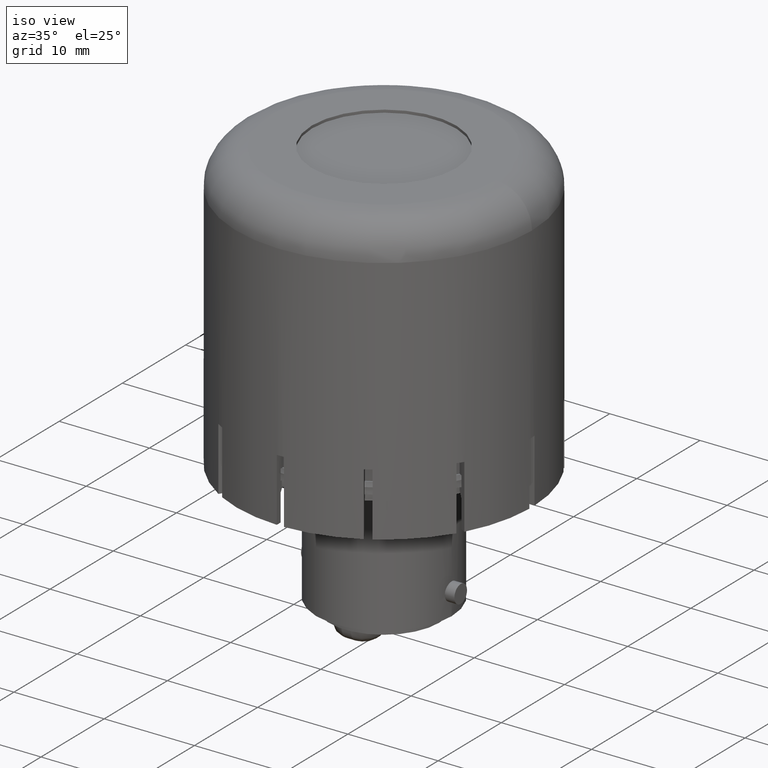
[diagram: clean part render]
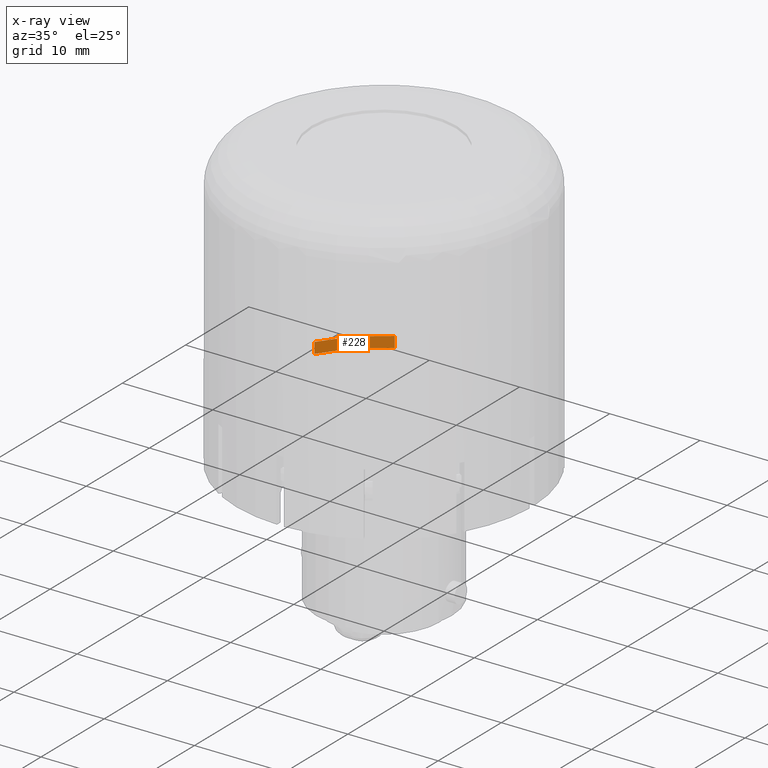
[diagram: x-ray — body ghosted, one internal face saturated and labeled with its STEP entity id]
A machine part, iso view, then the same camera in x-ray: the body is ghosted and one INTERNAL B-rep face — a face not visible from any outside direction — is saturated and labeled: STEP entity #228.
In plain terms, the highlighted cylindrical surface (partial cylindrical patch) has radius 15.8 mm, axis along (0, 0, -1).
Its self-contained STEP definition (entity closure, byte-faithful):
#228=ADVANCED_FACE('',(#466),#402,.F.);
#402=CYLINDRICAL_SURFACE('',#3761,15.8);
#466=FACE_OUTER_BOUND('',#641,.T.);
#641=EDGE_LOOP('',(#1188,#1189,#1190,#1191));
#843=CIRCLE('',#3697,15.8);
#892=CIRCLE('',#3759,15.8);
#1188=ORIENTED_EDGE('',*,*,#2625,.F.);
#1189=ORIENTED_EDGE('',*,*,#2624,.F.);
#1190=ORIENTED_EDGE('',*,*,#2626,.T.);
#1191=ORIENTED_EDGE('',*,*,#2526,.T.);
#2175=VERTEX_POINT('',#5295);
#2176=VERTEX_POINT('',#5297);
#2271=VERTEX_POINT('',#5500);
#2273=VERTEX_POINT('',#5504);
#2526=EDGE_CURVE('',#2176,#2175,#843,.T.);
#2624=EDGE_CURVE('',#2273,#2271,#892,.T.);
#2625=EDGE_CURVE('',#2271,#2175,#3093,.T.);
#2626=EDGE_CURVE('',#2273,#2176,#3094,.T.);
#3093=LINE('',#5507,#3413);
#3094=LINE('',#5508,#3414);
#3413=VECTOR('',#4338,1.);
#3414=VECTOR('',#4339,1.);
#3697=AXIS2_PLACEMENT_3D('',#5296,#4161,#4162);
#3759=AXIS2_PLACEMENT_3D('',#5505,#4334,#4335);
#3761=AXIS2_PLACEMENT_3D('',#5509,#4340,#4341);
#4161=DIRECTION('',(0.,0.,-1.));
#4162=DIRECTION('',(1.,0.,0.));
#4334=DIRECTION('',(0.,0.,-1.));
#4335=DIRECTION('',(1.,0.,0.));
#4338=DIRECTION('',(0.,0.,-1.));
#4339=DIRECTION('',(0.,0.,-1.));
#4340=DIRECTION('',(0.,0.,-1.));
#4341=DIRECTION('',(-1.,0.,0.));
#5295=CARTESIAN_POINT('',(-8.2438781101667,13.4788157382136,18.5));
#5296=CARTESIAN_POINT('',(9.86076131526265E-032,0.,18.5));
#5297=CARTESIAN_POINT('',(-13.4788157382136,8.24387811016667,18.5));
#5500=CARTESIAN_POINT('',(-8.2438781101667,13.4788157382136,19.7));
#5504=CARTESIAN_POINT('',(-13.4788157382136,8.24387811016667,19.7));
#5505=CARTESIAN_POINT('',(9.86076131526265E-032,0.,19.7));
#5507=CARTESIAN_POINT('',(-8.2438781101667,13.4788157382136,46.));
#5508=CARTESIAN_POINT('',(-13.4788157382136,8.24387811016667,46.));
#5509=CARTESIAN_POINT('',(9.86076131526265E-032,0.,46.));